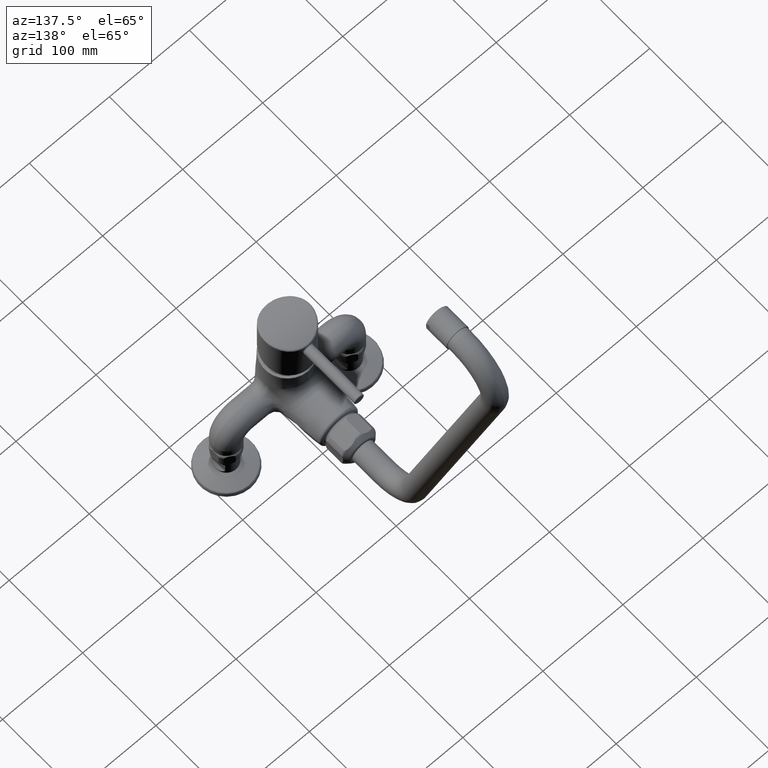
[diagram: clean part render]
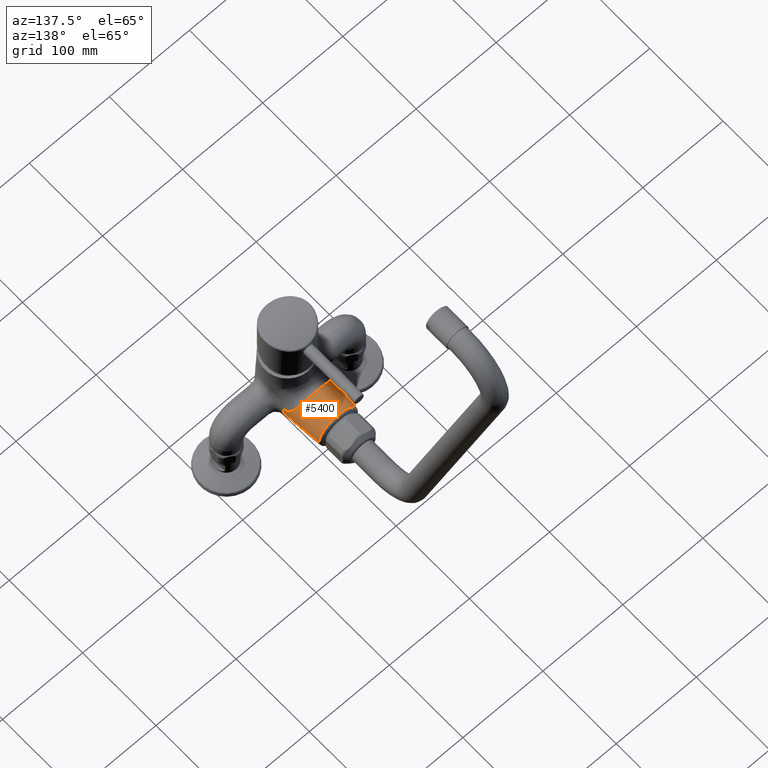
[diagram: same view with one face highlighted and labeled with its STEP entity id]
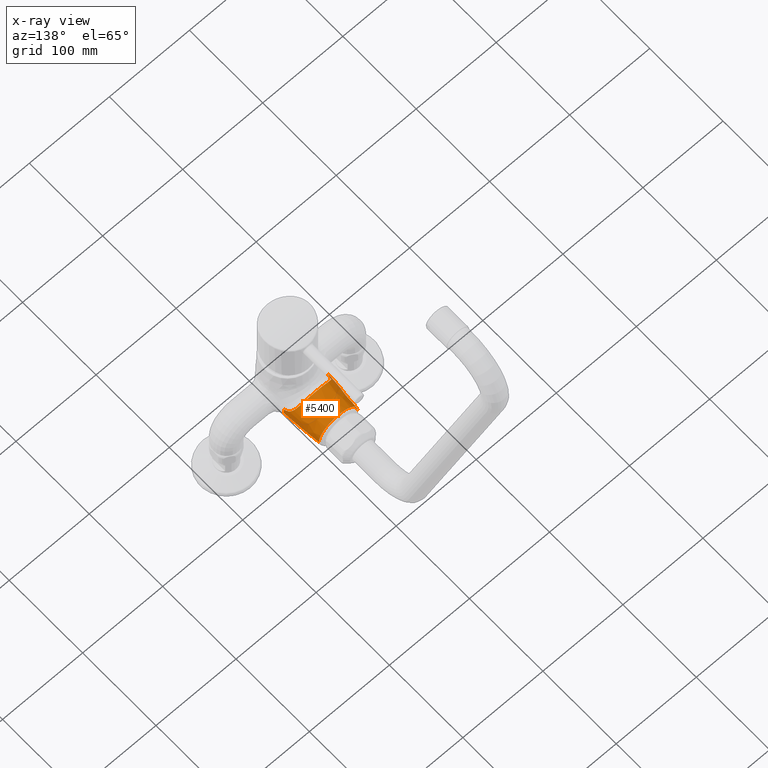
[diagram: x-ray of the same camera — body ghosted, the highlighted face saturated]
A machine part, auxiliary view. The second image highlights one B-rep face of the part: STEP entity #5400.
The next image is the same camera in x-ray: the body ghosted, the highlighted face saturated — about 2% of this face is hidden behind the body in this view.
In plain terms, the highlighted face is a freeform B-spline surface patch.
Its self-contained STEP definition (entity closure, byte-faithful):
#694=CARTESIAN_POINT('',(7.911370257072E2,2.7E1,-9.688633262193E-14));
#695=DIRECTION('',(0.E0,0.E0,1.E0));
#696=DIRECTION('',(-9.934252961696E-1,1.144822297580E-1,0.E0));
#697=AXIS2_PLACEMENT_3D('',#694,#695,#696);
#699=CARTESIAN_POINT('',(0.E0,1.209381761117E2,0.E0));
#700=DIRECTION('',(0.E0,1.E0,0.E0));
#701=DIRECTION('',(-1.E0,0.E0,0.E0));
#702=AXIS2_PLACEMENT_3D('',#699,#700,#701);
#704=CARTESIAN_POINT('',(0.E0,1.209381761117E2,0.E0));
#705=DIRECTION('',(0.E0,1.E0,0.E0));
#706=DIRECTION('',(0.E0,0.E0,1.E0));
#707=AXIS2_PLACEMENT_3D('',#704,#705,#706);
#709=CARTESIAN_POINT('',(-7.911370257072E2,2.7E1,0.E0));
#710=DIRECTION('',(0.E0,0.E0,-1.E0));
#711=DIRECTION('',(9.934252961696E-1,1.144822297580E-1,0.E0));
#712=AXIS2_PLACEMENT_3D('',#709,#710,#711);
#798=CARTESIAN_POINT('',(-2.733051149150E1,7.668058963440E1,5.636709622760E0));
#799=CARTESIAN_POINT('',(-2.740371849965E1,7.682068705449E1,5.239683090774E0));
#800=CARTESIAN_POINT('',(-2.753280670065E1,7.707023332094E1,4.452046085229E0));
#801=CARTESIAN_POINT('',(-2.767895688014E1,7.734109296540E1,3.286735108486E0));
#802=CARTESIAN_POINT('',(-2.777762294078E1,7.753627186737E1,2.152420076380E0));
#803=CARTESIAN_POINT('',(-2.783364896498E1,7.764738346777E1,1.051425947273E0));
#804=CARTESIAN_POINT('',(-2.784547732675E1,7.766403539636E1,3.459239916069E-1));
#805=CARTESIAN_POINT('',(-2.784547732675E1,7.766403539636E1,2.188361543241E-8));
#1002=CARTESIAN_POINT('',(0.E0,9.049976067837E1,2.695035642715E1));
#1003=CARTESIAN_POINT('',(7.421240516008E-1,9.049904102164E1,2.695041228674E1));
#1004=CARTESIAN_POINT('',(2.182702711905E0,9.048631728340E1,2.689180342817E1));
#1005=CARTESIAN_POINT('',(4.284210501600E0,9.042686744883E1,2.663824144073E1));
#1006=CARTESIAN_POINT('',(6.065244232968E0,9.034658504938E1,2.628841523140E1));
#1007=CARTESIAN_POINT('',(7.568642033057E0,9.025787378579E1,2.589966936265E1));
#1008=CARTESIAN_POINT('',(8.984966453995E0,9.015485616935E1,2.545117936693E1));
#1009=CARTESIAN_POINT('',(1.041633144684E1,9.003021105847E1,2.491299570868E1));
#1010=CARTESIAN_POINT('',(1.202975010938E1,8.986114540867E1,2.419656302681E1));
#1011=CARTESIAN_POINT('',(1.381091142138E1,8.963129372422E1,2.325213064965E1));
#1012=CARTESIAN_POINT('',(1.562050619767E1,8.933898743319E1,2.210678972629E1));
#1013=CARTESIAN_POINT('',(1.735561184912E1,8.898414048437E1,2.080688691541E1));
#1014=CARTESIAN_POINT('',(1.895022625236E1,8.856649996438E1,1.940766411928E1));
#1015=CARTESIAN_POINT('',(2.038193356268E1,8.807911683573E1,1.794894484235E1));
#1016=CARTESIAN_POINT('',(2.158700980715E1,8.754273523294E1,1.653575551171E1));
#1017=CARTESIAN_POINT('',(2.254543950860E1,8.699937685371E1,1.526783629435E1));
#1018=CARTESIAN_POINT('',(2.338848928576E1,8.639056276166E1,1.402681608186E1));
#1019=CARTESIAN_POINT('',(2.414102202242E1,8.569090644965E1,1.279473278878E1));
#1020=CARTESIAN_POINT('',(2.481840496177E1,8.486632272242E1,1.156162924884E1));
#1021=CARTESIAN_POINT('',(2.537470494989E1,8.397596752140E1,1.044083744198E1));
#1022=CARTESIAN_POINT('',(2.582009374806E1,8.306034335361E1,9.464631887238E0));
#1023=CARTESIAN_POINT('',(2.619817605339E1,8.206834566196E1,8.576922082078E0));
#1024=CARTESIAN_POINT('',(2.652669513573E1,8.097823661312E1,7.759453821249E0));
#1025=CARTESIAN_POINT('',(2.682233308277E1,7.974183644399E1,6.991194904658E0));
#1026=CARTESIAN_POINT('',(2.709370721256E1,7.831130401139E1,6.265873736143E0));
#1027=CARTESIAN_POINT('',(2.725403348525E1,7.724398510754E1,5.838341062450E0));
#1028=CARTESIAN_POINT('',(2.733051149150E1,7.668058963440E1,5.636709622760E0));
#1321=CARTESIAN_POINT('',(2.733051149150E1,7.668058963440E1,5.636709622760E0));
#1322=CARTESIAN_POINT('',(2.740371849965E1,7.682068705449E1,5.239683090774E0));
#1323=CARTESIAN_POINT('',(2.753280670065E1,7.707023332094E1,4.452046085230E0));
#1324=CARTESIAN_POINT('',(2.767895688014E1,7.734109296540E1,3.286735108486E0));
#1325=CARTESIAN_POINT('',(2.777762294078E1,7.753627186737E1,2.152420076381E0));
#1326=CARTESIAN_POINT('',(2.783364896498E1,7.764738346777E1,1.051425947273E0));
#1327=CARTESIAN_POINT('',(2.784547732675E1,7.766403539636E1,3.459239916070E-1));
#1328=CARTESIAN_POINT('',(2.784547732675E1,7.766403539636E1,2.188361234094E-8));
#2933=CARTESIAN_POINT('',(0.E0,9.049976067837E1,2.695035642715E1));
#2934=CARTESIAN_POINT('',(-7.421240516008E-1,9.049904102164E1,
2.695041228674E1));
#2935=CARTESIAN_POINT('',(-2.182702711905E0,9.048631728340E1,2.689180342817E1));
#2936=CARTESIAN_POINT('',(-4.284210501601E0,9.042686744883E1,2.663824144073E1));
#2937=CARTESIAN_POINT('',(-6.065244232969E0,9.034658504938E1,2.628841523140E1));
#2938=CARTESIAN_POINT('',(-7.568642033057E0,9.025787378579E1,2.589966936265E1));
#2939=CARTESIAN_POINT('',(-8.984966453996E0,9.015485616935E1,2.545117936693E1));
#2940=CARTESIAN_POINT('',(-1.041633144684E1,9.003021105847E1,2.491299570868E1));
#2941=CARTESIAN_POINT('',(-1.202975010938E1,8.986114540867E1,2.419656302681E1));
#2942=CARTESIAN_POINT('',(-1.381091142138E1,8.963129372422E1,2.325213064964E1));
#2943=CARTESIAN_POINT('',(-1.562050619767E1,8.933898743319E1,2.210678972629E1));
#2944=CARTESIAN_POINT('',(-1.735561184912E1,8.898414048437E1,2.080688691541E1));
#2945=CARTESIAN_POINT('',(-1.895022625236E1,8.856649996438E1,1.940766411928E1));
#2946=CARTESIAN_POINT('',(-2.038193356268E1,8.807911683573E1,1.794894484235E1));
#2947=CARTESIAN_POINT('',(-2.158700980715E1,8.754273523294E1,1.653575551171E1));
#2948=CARTESIAN_POINT('',(-2.254543950860E1,8.699937685371E1,1.526783629435E1));
#2949=CARTESIAN_POINT('',(-2.338848928576E1,8.639056276166E1,1.402681608185E1));
#2950=CARTESIAN_POINT('',(-2.414102202243E1,8.569090644965E1,1.279473278877E1));
#2951=CARTESIAN_POINT('',(-2.481840496177E1,8.486632272242E1,1.156162924884E1));
#2952=CARTESIAN_POINT('',(-2.537470494989E1,8.397596752140E1,1.044083744198E1));
#2953=CARTESIAN_POINT('',(-2.582009374806E1,8.306034335361E1,9.464631887238E0));
#2954=CARTESIAN_POINT('',(-2.619817605339E1,8.206834566196E1,8.576922082078E0));
#2955=CARTESIAN_POINT('',(-2.652669513574E1,8.097823661311E1,7.759453821248E0));
#2956=CARTESIAN_POINT('',(-2.682233308277E1,7.974183644399E1,6.991194904657E0));
#2957=CARTESIAN_POINT('',(-2.709370721256E1,7.831130401139E1,6.265873736141E0));
#2958=CARTESIAN_POINT('',(-2.725403348525E1,7.724398510754E1,5.838341062450E0));
#2959=CARTESIAN_POINT('',(-2.733051149150E1,7.668058963440E1,5.636709622760E0));
#4290=VERTEX_POINT('',#2933);
#4291=VERTEX_POINT('',#2959);
#4292=VERTEX_POINT('',#805);
#4293=VERTEX_POINT('',#1028);
#4294=VERTEX_POINT('',#1328);
#4357=CARTESIAN_POINT('',(-2.401621355671E1,1.209381761117E2,0.E0));
#4358=VERTEX_POINT('',#4357);
#4359=CARTESIAN_POINT('',(2.401621355671E1,1.209381761117E2,0.E0));
#4360=VERTEX_POINT('',#4359);
#4369=CARTESIAN_POINT('',(0.E0,1.209381761117E2,2.401621355671E1));
#4370=VERTEX_POINT('',#4369);
#5355=CARTESIAN_POINT('',(-2.790387655962E1,7.579351915059E1,
-1.755563108836E0));
#5356=CARTESIAN_POINT('',(-2.698959231546E1,9.117194082630E1,
-1.698041219839E0));
#5357=CARTESIAN_POINT('',(-2.564354757486E1,1.065184736441E2,
-1.613355262876E0));
#5358=CARTESIAN_POINT('',(-2.386680955392E1,1.218209500540E2,
-1.501572381491E0));
#5359=CARTESIAN_POINT('',(-2.898424763427E1,7.579351915059E1,1.541644338512E1));
#5360=CARTESIAN_POINT('',(-2.803456450031E1,9.117194082630E1,1.491131603273E1));
#5361=CARTESIAN_POINT('',(-2.663640414058E1,1.065184736441E2,1.416764794443E1));
#5362=CARTESIAN_POINT('',(-2.479087509123E1,1.218209500540E2,1.318602873996E1));
#5363=CARTESIAN_POINT('',(-1.720595852277E1,7.579351915059E1,2.795904735294E1));
#5364=CARTESIAN_POINT('',(-1.664219682646E1,9.117194082630E1,2.704295541059E1));
#5365=CARTESIAN_POINT('',(-1.581220498188E1,1.065184736441E2,2.569424930658E1));
#5366=CARTESIAN_POINT('',(-1.471664105086E1,1.218209500540E2,2.391399836706E1));
#5367=CARTESIAN_POINT('',(0.E0,7.579351915059E1,2.795904735294E1));
#5368=CARTESIAN_POINT('',(0.E0,9.117194082630E1,2.704295541059E1));
#5369=CARTESIAN_POINT('',(0.E0,1.065184736441E2,2.569424930658E1));
#5370=CARTESIAN_POINT('',(0.E0,1.218209500540E2,2.391399836706E1));
#5371=CARTESIAN_POINT('',(1.720595852277E1,7.579351915059E1,2.795904735294E1));
#5372=CARTESIAN_POINT('',(1.664219682646E1,9.117194082630E1,2.704295541059E1));
#5373=CARTESIAN_POINT('',(1.581220498188E1,1.065184736441E2,2.569424930658E1));
#5374=CARTESIAN_POINT('',(1.471664105086E1,1.218209500540E2,2.391399836706E1));
#5375=CARTESIAN_POINT('',(2.898424763427E1,7.579351915059E1,1.541644338512E1));
#5376=CARTESIAN_POINT('',(2.803456450031E1,9.117194082630E1,1.491131603273E1));
#5377=CARTESIAN_POINT('',(2.663640414058E1,1.065184736441E2,1.416764794443E1));
#5378=CARTESIAN_POINT('',(2.479087509123E1,1.218209500540E2,1.318602873996E1));
#5379=CARTESIAN_POINT('',(2.790387655962E1,7.579351915059E1,-1.755563108836E0));
#5380=CARTESIAN_POINT('',(2.698959231546E1,9.117194082630E1,-1.698041219839E0));
#5381=CARTESIAN_POINT('',(2.564354757486E1,1.065184736441E2,-1.613355262876E0));
#5382=CARTESIAN_POINT('',(2.386680955392E1,1.218209500540E2,-1.501572381491E0));
#5383=(BOUNDED_SURFACE()B_SPLINE_SURFACE(3,3,((#5355,#5356,#5357,#5358),(#5359,
#5360,#5361,#5362),(#5363,#5364,#5365,#5366),(#5367,#5368,#5369,#5370),(#5371,
#5372,#5373,#5374),(#5375,#5376,#5377,#5378),(#5379,#5380,#5381,#5382)),
.UNSPECIFIED.,.F.,.F.,.F.)B_SPLINE_SURFACE_WITH_KNOTS((4,3,4),(4,4),(0.E0,1.E0,
2.E0),(0.E0,1.E0),.UNSPECIFIED.)GEOMETRIC_REPRESENTATION_ITEM()RATIONAL_B_SPLINE_SURFACE(((1.187498110459E0,1.187184273173E0,1.187184273173E0,1.187498110459E0),(
9.377649666932E-1,9.375171299938E-1,9.375171299938E-1,9.377649666932E-1),(
9.377649666932E-1,9.375171299938E-1,9.375171299938E-1,9.377649666932E-1),(
1.187498110459E0,1.187184273173E0,1.187184273173E0,1.187498110459E0),(
9.377649666932E-1,9.375171299938E-1,9.375171299938E-1,9.377649666932E-1),(
9.377649666932E-1,9.375171299938E-1,9.375171299938E-1,9.377649666932E-1),(
1.187498110459E0,1.187184273173E0,1.187184273173E0,1.187498110459E0)))REPRESENTATION_ITEM('')SURFACE());
#5385=ORIENTED_EDGE('',*,*,#5384,.F.);
#5386=ORIENTED_EDGE('',*,*,#5296,.T.);
#5387=ORIENTED_EDGE('',*,*,#5322,.T.);
#5389=ORIENTED_EDGE('',*,*,#5388,.T.);
#5391=ORIENTED_EDGE('',*,*,#5390,.F.);
#5393=ORIENTED_EDGE('',*,*,#5392,.F.);
#5395=ORIENTED_EDGE('',*,*,#5394,.T.);
#5397=ORIENTED_EDGE('',*,*,#5396,.T.);
#5398=EDGE_LOOP('',(#5385,#5386,#5387,#5389,#5391,#5393,#5395,#5397));
#5399=FACE_OUTER_BOUND('',#5398,.F.);
#698=CIRCLE('',#697,8.205481E2);
#703=CIRCLE('',#702,2.401621355671E1);
#708=CIRCLE('',#707,2.401621355671E1);
#713=CIRCLE('',#712,8.205481E2);
#806=B_SPLINE_CURVE_WITH_KNOTS('',3,(#798,#799,#800,#801,#802,#803,#804,#805),
.UNSPECIFIED.,.F.,.F.,(4,1,1,1,1,4),(0.E0,2.E-1,4.E-1,6.E-1,8.E-1,1.E0),
.UNSPECIFIED.);
#1029=B_SPLINE_CURVE_WITH_KNOTS('',3,(#1002,#1003,#1004,#1005,#1006,#1007,#1008,
#1009,#1010,#1011,#1012,#1013,#1014,#1015,#1016,#1017,#1018,#1019,#1020,#1021,
#1022,#1023,#1024,#1025,#1026,#1027,#1028),.UNSPECIFIED.,.F.,.F.,(4,1,1,1,1,1,1,
1,1,1,1,1,1,1,1,1,1,1,1,1,1,1,1,1,4),(0.E0,4.166666666667E-2,8.333333333333E-2,
1.25E-1,1.666666666667E-1,2.083333333333E-1,2.5E-1,2.916666666667E-1,
3.333333333333E-1,3.75E-1,4.166666666667E-1,4.583333333333E-1,5.E-1,
5.416666666667E-1,5.833333333333E-1,6.25E-1,6.666666666667E-1,7.083333333333E-1,
7.5E-1,7.916666666667E-1,8.333333333333E-1,8.75E-1,9.166666666667E-1,
9.583333333333E-1,1.E0),.UNSPECIFIED.);
#1329=B_SPLINE_CURVE_WITH_KNOTS('',3,(#1321,#1322,#1323,#1324,#1325,#1326,#1327,
#1328),.UNSPECIFIED.,.F.,.F.,(4,1,1,1,1,4),(0.E0,2.E-1,4.E-1,6.E-1,8.E-1,1.E0),
.UNSPECIFIED.);
#2960=B_SPLINE_CURVE_WITH_KNOTS('',3,(#2933,#2934,#2935,#2936,#2937,#2938,#2939,
#2940,#2941,#2942,#2943,#2944,#2945,#2946,#2947,#2948,#2949,#2950,#2951,#2952,
#2953,#2954,#2955,#2956,#2957,#2958,#2959),.UNSPECIFIED.,.F.,.F.,(4,1,1,1,1,1,1,
1,1,1,1,1,1,1,1,1,1,1,1,1,1,1,1,1,4),(0.E0,4.166666666667E-2,8.333333333333E-2,
1.25E-1,1.666666666667E-1,2.083333333333E-1,2.5E-1,2.916666666667E-1,
3.333333333333E-1,3.75E-1,4.166666666667E-1,4.583333333333E-1,5.E-1,
5.416666666667E-1,5.833333333333E-1,6.25E-1,6.666666666667E-1,7.083333333333E-1,
7.5E-1,7.916666666667E-1,8.333333333333E-1,8.75E-1,9.166666666667E-1,
9.583333333333E-1,1.E0),.UNSPECIFIED.);
#5296=EDGE_CURVE('',#4358,#4370,#703,.T.);
#5322=EDGE_CURVE('',#4370,#4360,#708,.T.);
#5384=EDGE_CURVE('',#4358,#4292,#698,.T.);
#5388=EDGE_CURVE('',#4360,#4294,#713,.T.);
#5390=EDGE_CURVE('',#4293,#4294,#1329,.T.);
#5392=EDGE_CURVE('',#4290,#4293,#1029,.T.);
#5394=EDGE_CURVE('',#4290,#4291,#2960,.T.);
#5396=EDGE_CURVE('',#4291,#4292,#806,.T.);
#5400=ADVANCED_FACE('',(#5399),#5383,.T.);